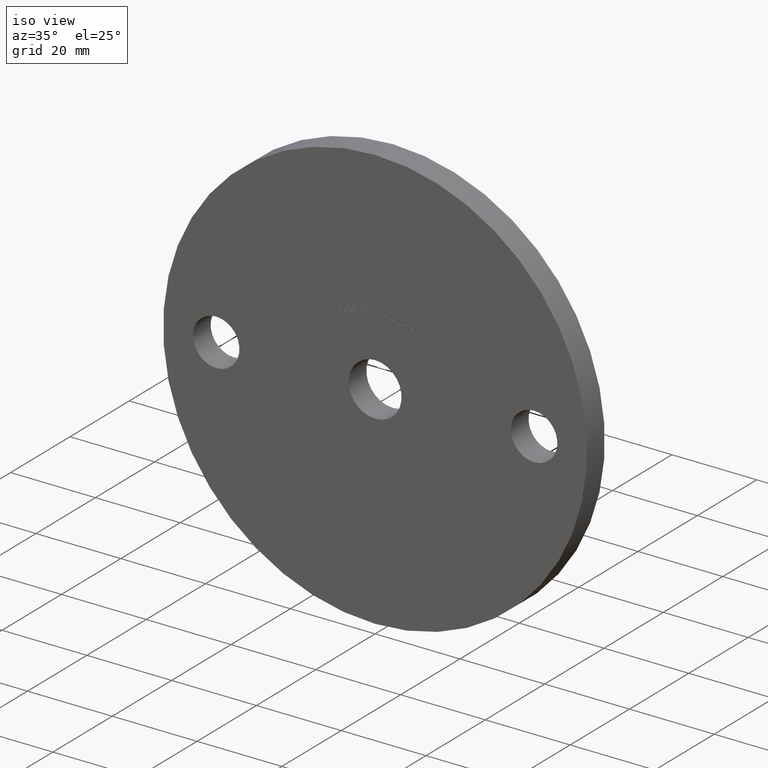
[diagram: clean part render]
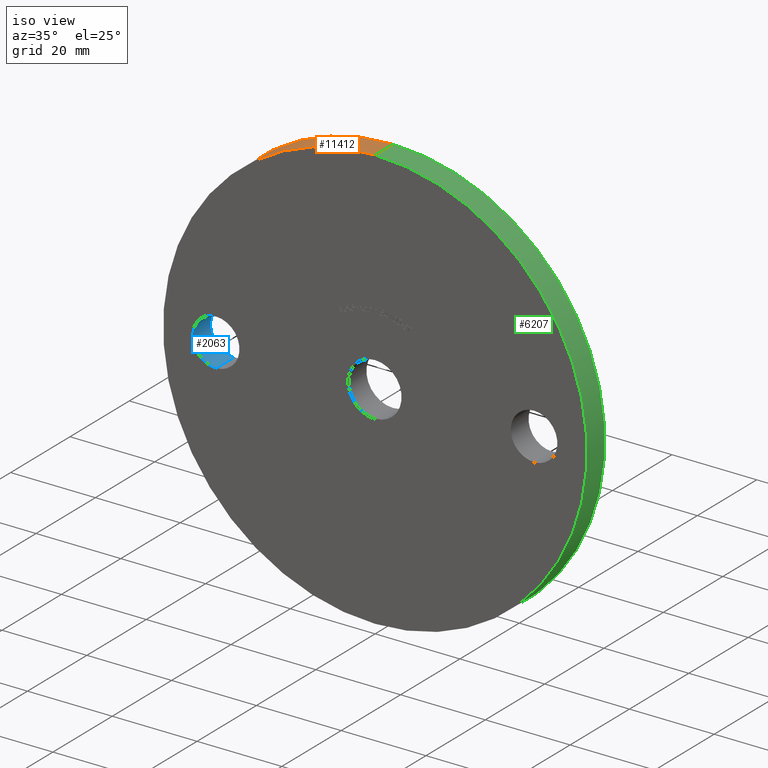
[diagram: same view with three faces highlighted in distinct colors, each labeled with its STEP entity id]
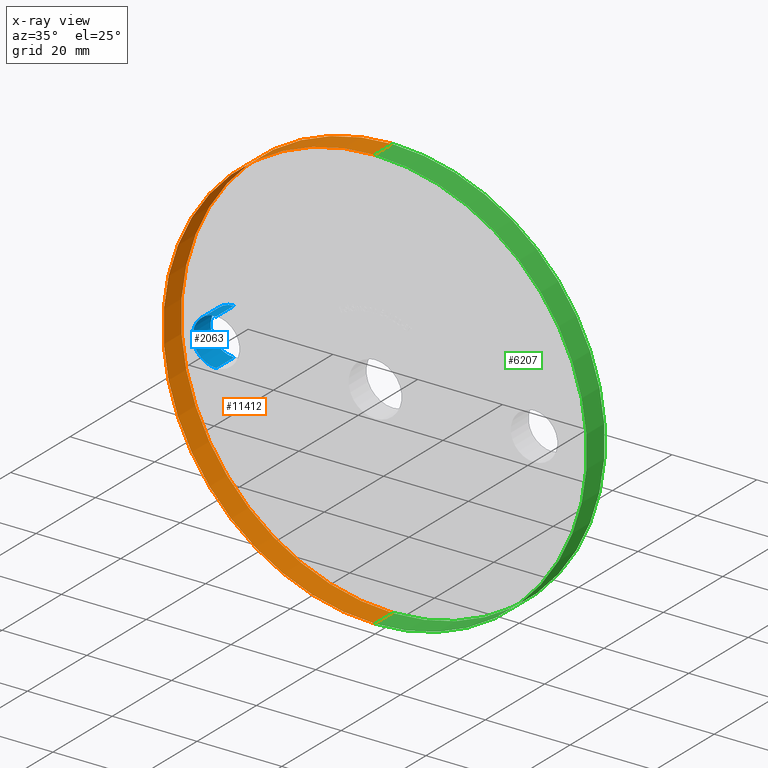
[diagram: x-ray of the same camera — body ghosted, the three highlighted faces saturated]
A machine part, iso view with three faces highlighted in distinct colors.
The next image is the same camera in x-ray (body ghosted, the three faces saturated) — at least one of them is partly hidden behind the body in this view.
Their STEP definitions:

[orange] entity #11412 — the highlighted cylindrical surface (partial cylindrical patch) has radius 50 mm, axis along (-0, -1, -0).
#189 = ORIENTED_EDGE ( 'NONE', *, *, #931, .T. ) ;
#226 = DIRECTION ( 'NONE',  ( 0.0000000000000000000, 0.0000000000000000000, 1.000000000000000000 ) ) ;
#613 = EDGE_CURVE ( 'NONE', #3628, #2033, #4192, .T. ) ;
#816 = CARTESIAN_POINT ( 'NONE',  ( 0.0000000000000000000, 6.000000000000000000, 0.0000000000000000000 ) ) ;
#931 = EDGE_CURVE ( 'NONE', #8066, #1587, #3717, .T. ) ;
#1360 = CARTESIAN_POINT ( 'NONE',  ( 0.0000000000000000000, 6.000000000000000000, -50.00000000000000000 ) ) ;
#1587 = VERTEX_POINT ( 'NONE', #3432 ) ;
#1832 = CARTESIAN_POINT ( 'NONE',  ( 0.0000000000000000000, 6.000000000000000000, 0.0000000000000000000 ) ) ;
#2033 = VERTEX_POINT ( 'NONE', #2680 ) ;
#2680 = CARTESIAN_POINT ( 'NONE',  ( 6.123233995736766100E-015, 0.0000000000000000000, 50.00000000000000000 ) ) ;
#3432 = CARTESIAN_POINT ( 'NONE',  ( 0.0000000000000000000, 0.0000000000000000000, -50.00000000000000000 ) ) ;
#3512 = DIRECTION ( 'NONE',  ( 0.0000000000000000000, 1.000000000000000000, 0.0000000000000000000 ) ) ;
#3628 = VERTEX_POINT ( 'NONE', #11001 ) ;
#3669 = AXIS2_PLACEMENT_3D ( 'NONE', #816, #6866, #9584 ) ;
#3717 = LINE ( 'NONE', #1360, #9955 ) ;
#4192 = LINE ( 'NONE', #4214, #6817 ) ;
#4214 = CARTESIAN_POINT ( 'NONE',  ( 6.123233995736766100E-015, 6.000000000000000000, 50.00000000000000000 ) ) ;
#4515 = DIRECTION ( 'NONE',  ( 0.0000000000000000000, 0.0000000000000000000, 1.000000000000000000 ) ) ;
#5046 = EDGE_CURVE ( 'NONE', #8066, #3628, #6048, .T. ) ;
#5457 = CARTESIAN_POINT ( 'NONE',  ( 0.0000000000000000000, 0.0000000000000000000, 0.0000000000000000000 ) ) ;
#5685 = CYLINDRICAL_SURFACE ( 'NONE', #3669, 50.00000000000000000 ) ;
#5748 = EDGE_CURVE ( 'NONE', #1587, #2033, #5753, .T. ) ;
#5753 = CIRCLE ( 'NONE', #10802, 50.00000000000000000 ) ;
#5974 = FACE_OUTER_BOUND ( 'NONE', #11284, .T. ) ;
#6048 = CIRCLE ( 'NONE', #9054, 50.00000000000000000 ) ;
#6817 = VECTOR ( 'NONE', #6881, 1000.000000000000000 ) ;
#6866 = DIRECTION ( 'NONE',  ( -0.0000000000000000000, -1.000000000000000000, -0.0000000000000000000 ) ) ;
#6881 = DIRECTION ( 'NONE',  ( -0.0000000000000000000, -1.000000000000000000, -0.0000000000000000000 ) ) ;
#7077 = ORIENTED_EDGE ( 'NONE', *, *, #5748, .T. ) ;
#7430 = CARTESIAN_POINT ( 'NONE',  ( 0.0000000000000000000, 6.000000000000000000, -50.00000000000000000 ) ) ;
#7643 = DIRECTION ( 'NONE',  ( -0.0000000000000000000, -1.000000000000000000, -0.0000000000000000000 ) ) ;
#8066 = VERTEX_POINT ( 'NONE', #7430 ) ;
#8996 = DIRECTION ( 'NONE',  ( 0.0000000000000000000, 1.000000000000000000, 0.0000000000000000000 ) ) ;
#9054 = AXIS2_PLACEMENT_3D ( 'NONE', #1832, #3512, #4515 ) ;
#9584 = DIRECTION ( 'NONE',  ( 0.0000000000000000000, 0.0000000000000000000, -1.000000000000000000 ) ) ;
#9615 = ORIENTED_EDGE ( 'NONE', *, *, #613, .F. ) ;
#9955 = VECTOR ( 'NONE', #7643, 1000.000000000000000 ) ;
#10802 = AXIS2_PLACEMENT_3D ( 'NONE', #5457, #8996, #226 ) ;
#11001 = CARTESIAN_POINT ( 'NONE',  ( 6.123233995736766100E-015, 6.000000000000000000, 50.00000000000000000 ) ) ;
#11103 = ORIENTED_EDGE ( 'NONE', *, *, #5046, .F. ) ;
#11284 = EDGE_LOOP ( 'NONE', ( #9615, #11103, #189, #7077 ) ) ;
#11412 = ADVANCED_FACE ( 'NONE', ( #5974 ), #5685, .T. ) ;

[blue] entity #2063 — the highlighted cylindrical surface (edge-blend (fillet) strip) has radius 5.5 mm, axis along (-0, 1, -0).
#30 = ORIENTED_EDGE ( 'NONE', *, *, #10881, .F. ) ;
#121 = EDGE_CURVE ( 'NONE', #8859, #2638, #7288, .T. ) ;
#1120 = VECTOR ( 'NONE', #5824, 1000.000000000000000 ) ;
#1156 = CARTESIAN_POINT ( 'NONE',  ( -37.50000000000000000, 6.000000000000000000, 0.0000000000000000000 ) ) ;
#1206 = ORIENTED_EDGE ( 'NONE', *, *, #10160, .T. ) ;
#1668 = LINE ( 'NONE', #7530, #1120 ) ;
#2046 = DIRECTION ( 'NONE',  ( 0.0000000000000000000, 0.0000000000000000000, 1.000000000000000000 ) ) ;
#2063 = ADVANCED_FACE ( 'NONE', ( #9388 ), #2448, .F. ) ;
#2232 = DIRECTION ( 'NONE',  ( -0.0000000000000000000, 1.000000000000000000, -0.0000000000000000000 ) ) ;
#2448 = CYLINDRICAL_SURFACE ( 'NONE', #8811, 5.499999999999996400 ) ;
#2638 = VERTEX_POINT ( 'NONE', #7796 ) ;
#3120 = EDGE_LOOP ( 'NONE', ( #30, #4413, #1206, #5909 ) ) ;
#4124 = AXIS2_PLACEMENT_3D ( 'NONE', #7239, #9110, #10807 ) ;
#4413 = ORIENTED_EDGE ( 'NONE', *, *, #9987, .T. ) ;
#4725 = DIRECTION ( 'NONE',  ( 0.0000000000000000000, 1.000000000000000000, 0.0000000000000000000 ) ) ;
#5824 = DIRECTION ( 'NONE',  ( -0.0000000000000000000, 1.000000000000000000, -0.0000000000000000000 ) ) ;
#5909 = ORIENTED_EDGE ( 'NONE', *, *, #121, .F. ) ;
#7239 = CARTESIAN_POINT ( 'NONE',  ( -37.50000000000000000, 0.0000000000000000000, 0.0000000000000000000 ) ) ;
#7288 = LINE ( 'NONE', #7513, #11149 ) ;
#7513 = CARTESIAN_POINT ( 'NONE',  ( -37.50000000000000000, 0.0000000000000000000, 5.499999999999996400 ) ) ;
#7530 = CARTESIAN_POINT ( 'NONE',  ( -37.50000000000000000, 0.0000000000000000000, -5.499999999999996400 ) ) ;
#7796 = CARTESIAN_POINT ( 'NONE',  ( -37.50000000000000000, 6.000000000000000000, 5.499999999999996400 ) ) ;
#8811 = AXIS2_PLACEMENT_3D ( 'NONE', #9812, #10672, #8940 ) ;
#8859 = VERTEX_POINT ( 'NONE', #10239 ) ;
#8940 = DIRECTION ( 'NONE',  ( 0.0000000000000000000, 0.0000000000000000000, 1.000000000000000000 ) ) ;
#9110 = DIRECTION ( 'NONE',  ( 0.0000000000000000000, 1.000000000000000000, 0.0000000000000000000 ) ) ;
#9388 = FACE_OUTER_BOUND ( 'NONE', #3120, .T. ) ;
#9440 = CIRCLE ( 'NONE', #4124, 5.499999999999996400 ) ;
#9479 = VERTEX_POINT ( 'NONE', #9709 ) ;
#9582 = VERTEX_POINT ( 'NONE', #10867 ) ;
#9709 = CARTESIAN_POINT ( 'NONE',  ( -37.50000000000000000, 0.0000000000000000000, -5.499999999999996400 ) ) ;
#9734 = CIRCLE ( 'NONE', #9840, 5.499999999999996400 ) ;
#9812 = CARTESIAN_POINT ( 'NONE',  ( -37.50000000000000000, 0.0000000000000000000, 0.0000000000000000000 ) ) ;
#9840 = AXIS2_PLACEMENT_3D ( 'NONE', #1156, #4725, #2046 ) ;
#9987 = EDGE_CURVE ( 'NONE', #9479, #9582, #1668, .T. ) ;
#10160 = EDGE_CURVE ( 'NONE', #9582, #2638, #9734, .T. ) ;
#10239 = CARTESIAN_POINT ( 'NONE',  ( -37.50000000000000000, 0.0000000000000000000, 5.499999999999996400 ) ) ;
#10672 = DIRECTION ( 'NONE',  ( -0.0000000000000000000, 1.000000000000000000, -0.0000000000000000000 ) ) ;
#10807 = DIRECTION ( 'NONE',  ( 0.0000000000000000000, 0.0000000000000000000, 1.000000000000000000 ) ) ;
#10867 = CARTESIAN_POINT ( 'NONE',  ( -37.50000000000000000, 6.000000000000000000, -5.499999999999996400 ) ) ;
#10881 = EDGE_CURVE ( 'NONE', #9479, #8859, #9440, .T. ) ;
#11149 = VECTOR ( 'NONE', #2232, 1000.000000000000000 ) ;

[green] entity #6207 — the highlighted cylindrical surface (partial cylindrical patch) has radius 50 mm, axis along (-0, -1, -0).
#29 = DIRECTION ( 'NONE',  ( -0.0000000000000000000, -1.000000000000000000, -0.0000000000000000000 ) ) ;
#455 = CIRCLE ( 'NONE', #2075, 50.00000000000000000 ) ;
#549 = CARTESIAN_POINT ( 'NONE',  ( 0.0000000000000000000, 0.0000000000000000000, 0.0000000000000000000 ) ) ;
#613 = EDGE_CURVE ( 'NONE', #3628, #2033, #4192, .T. ) ;
#931 = EDGE_CURVE ( 'NONE', #8066, #1587, #3717, .T. ) ;
#1360 = CARTESIAN_POINT ( 'NONE',  ( 0.0000000000000000000, 6.000000000000000000, -50.00000000000000000 ) ) ;
#1403 = DIRECTION ( 'NONE',  ( 0.0000000000000000000, 1.000000000000000000, 0.0000000000000000000 ) ) ;
#1442 = DIRECTION ( 'NONE',  ( 0.0000000000000000000, 0.0000000000000000000, 1.000000000000000000 ) ) ;
#1552 = AXIS2_PLACEMENT_3D ( 'NONE', #6761, #1403, #6795 ) ;
#1572 = FACE_OUTER_BOUND ( 'NONE', #7845, .T. ) ;
#1587 = VERTEX_POINT ( 'NONE', #3432 ) ;
#2033 = VERTEX_POINT ( 'NONE', #2680 ) ;
#2075 = AXIS2_PLACEMENT_3D ( 'NONE', #549, #6762, #1442 ) ;
#2680 = CARTESIAN_POINT ( 'NONE',  ( 6.123233995736766100E-015, 0.0000000000000000000, 50.00000000000000000 ) ) ;
#3432 = CARTESIAN_POINT ( 'NONE',  ( 0.0000000000000000000, 0.0000000000000000000, -50.00000000000000000 ) ) ;
#3628 = VERTEX_POINT ( 'NONE', #11001 ) ;
#3637 = CARTESIAN_POINT ( 'NONE',  ( 0.0000000000000000000, 6.000000000000000000, 0.0000000000000000000 ) ) ;
#3717 = LINE ( 'NONE', #1360, #9955 ) ;
#4189 = ORIENTED_EDGE ( 'NONE', *, *, #931, .F. ) ;
#4192 = LINE ( 'NONE', #4214, #6817 ) ;
#4214 = CARTESIAN_POINT ( 'NONE',  ( 6.123233995736766100E-015, 6.000000000000000000, 50.00000000000000000 ) ) ;
#4426 = EDGE_CURVE ( 'NONE', #3628, #8066, #6862, .T. ) ;
#6207 = ADVANCED_FACE ( 'NONE', ( #1572 ), #10895, .T. ) ;
#6761 = CARTESIAN_POINT ( 'NONE',  ( 0.0000000000000000000, 6.000000000000000000, 0.0000000000000000000 ) ) ;
#6762 = DIRECTION ( 'NONE',  ( 0.0000000000000000000, 1.000000000000000000, 0.0000000000000000000 ) ) ;
#6795 = DIRECTION ( 'NONE',  ( 0.0000000000000000000, 0.0000000000000000000, 1.000000000000000000 ) ) ;
#6817 = VECTOR ( 'NONE', #6881, 1000.000000000000000 ) ;
#6862 = CIRCLE ( 'NONE', #1552, 50.00000000000000000 ) ;
#6881 = DIRECTION ( 'NONE',  ( -0.0000000000000000000, -1.000000000000000000, -0.0000000000000000000 ) ) ;
#7430 = CARTESIAN_POINT ( 'NONE',  ( 0.0000000000000000000, 6.000000000000000000, -50.00000000000000000 ) ) ;
#7441 = EDGE_CURVE ( 'NONE', #2033, #1587, #455, .T. ) ;
#7643 = DIRECTION ( 'NONE',  ( -0.0000000000000000000, -1.000000000000000000, -0.0000000000000000000 ) ) ;
#7805 = AXIS2_PLACEMENT_3D ( 'NONE', #3637, #29, #8860 ) ;
#7845 = EDGE_LOOP ( 'NONE', ( #10541, #10675, #11362, #4189 ) ) ;
#8066 = VERTEX_POINT ( 'NONE', #7430 ) ;
#8860 = DIRECTION ( 'NONE',  ( 0.0000000000000000000, 0.0000000000000000000, -1.000000000000000000 ) ) ;
#9955 = VECTOR ( 'NONE', #7643, 1000.000000000000000 ) ;
#10541 = ORIENTED_EDGE ( 'NONE', *, *, #4426, .F. ) ;
#10675 = ORIENTED_EDGE ( 'NONE', *, *, #613, .T. ) ;
#10895 = CYLINDRICAL_SURFACE ( 'NONE', #7805, 50.00000000000000000 ) ;
#11001 = CARTESIAN_POINT ( 'NONE',  ( 6.123233995736766100E-015, 6.000000000000000000, 50.00000000000000000 ) ) ;
#11362 = ORIENTED_EDGE ( 'NONE', *, *, #7441, .T. ) ;